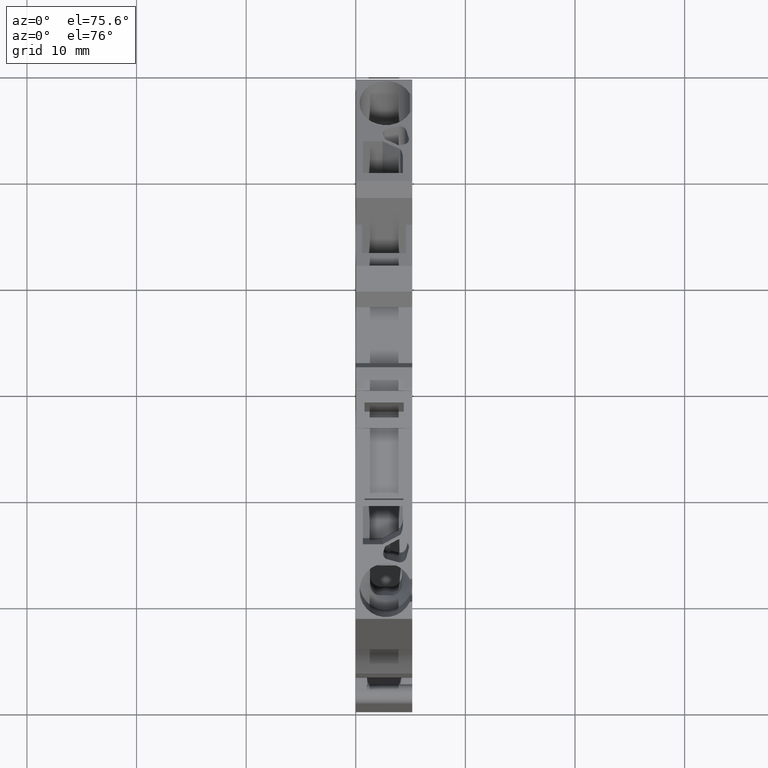
[diagram: clean part render]
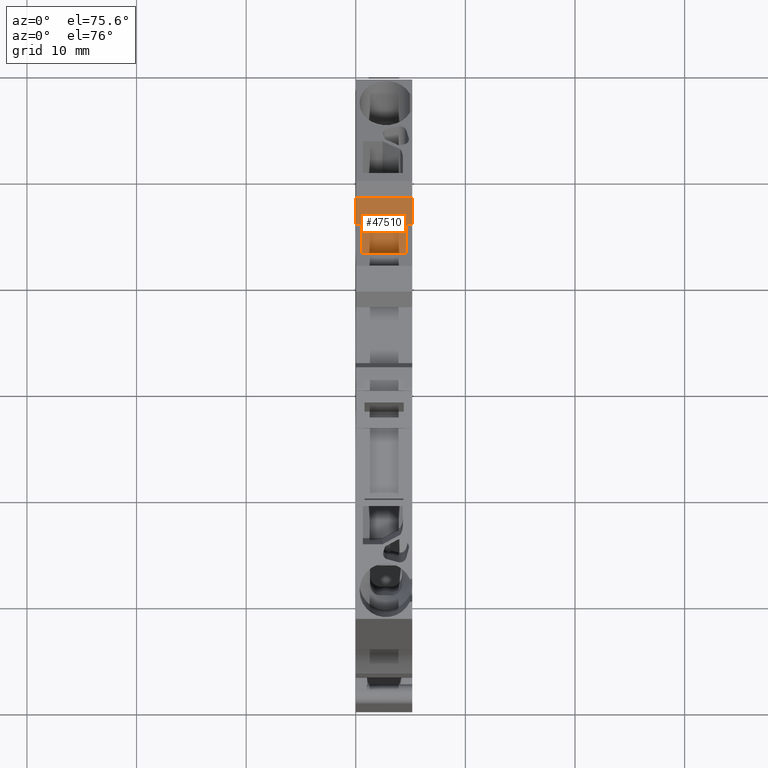
[diagram: same view with one face highlighted and labeled with its STEP entity id]
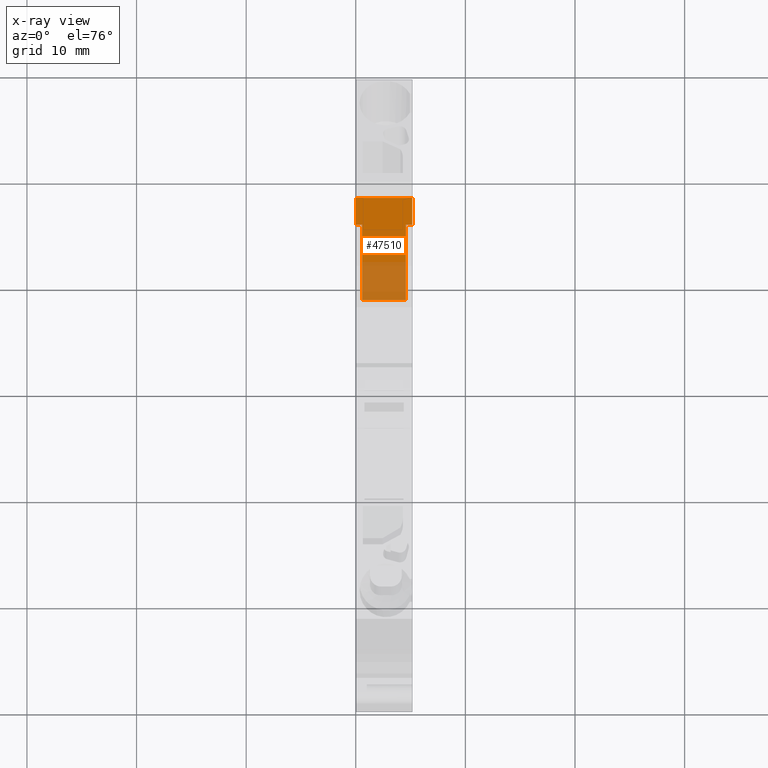
[diagram: x-ray of the same camera — body ghosted, the highlighted face saturated]
A machine part, auxiliary view. The second image highlights one B-rep face of the part: STEP entity #47510.
The next image is the same camera in x-ray: the body ghosted, the highlighted face saturated — about 35% of this face is hidden behind the body in this view.
In plain terms, the highlighted planar face has unit normal (0, 0.9397, -0.342).
Its self-contained STEP definition (entity closure, byte-faithful):
#7500=CARTESIAN_POINT('',(-3.89752594864123,30.7480357208503,
-1.23699953515012E-10));
#7510=VERTEX_POINT('',#7500);
#7540=CARTESIAN_POINT('',(-3.8975259486413,30.7480357208501,
2.8421709430404E-14));
#7550=DIRECTION('',(0.,0.,1.));
#7560=VECTOR('',#7550,1.);
#7570=LINE('',#7540,#7560);
#7580=CARTESIAN_POINT('',(-3.89752594864128,30.7480357208501,
-5.15000000000269));
#7590=VERTEX_POINT('',#7580);
#7600=EDGE_CURVE('',#7590,#7510,#7570,.T.);
#27450=CARTESIAN_POINT('',(-5.36821256494114,26.7073574514722,
-4.57500000000268));
#27460=VERTEX_POINT('',#27450);
#27490=CARTESIAN_POINT('',(-5.36821256494114,26.7073574514722,
-4.57500000000268));
#27500=DIRECTION('',(-0.342020143325669,-0.939692620785908,
3.34773204791426E-18));
#27510=VECTOR('',#27500,1.);
#27520=LINE('',#27490,#27510);
#27530=CARTESIAN_POINT('',(-9.5408583135143,15.2431074778841,
-4.57500000000268));
#27540=VERTEX_POINT('',#27530);
#27550=EDGE_CURVE('',#27460,#27540,#27520,.T.);
#32230=CARTESIAN_POINT('',(-5.36821256494114,26.7073574514722,
-0.574999999999995));
#32240=VERTEX_POINT('',#32230);
#32320=CARTESIAN_POINT('',(-9.5408583135143,15.2431074778841,
-0.574999999999995));
#32330=VERTEX_POINT('',#32320);
#32360=CARTESIAN_POINT('',(-5.36821256494114,26.7073574514722,
-0.574999999999995));
#32370=DIRECTION('',(-0.342020143325669,-0.939692620785908,
3.34773204791426E-18));
#32380=VECTOR('',#32370,1.);
#32390=LINE('',#32360,#32380);
#32400=EDGE_CURVE('',#32240,#32330,#32390,.T.);
#47110=CARTESIAN_POINT('',(-5.36821256494114,26.7073574514722,
-0.574999999999995));
#47120=DIRECTION('',(0.939692620785908,-0.342020143325669,
2.22044604924882E-16));
#47130=DIRECTION('',(-2.08653676733234E-16,7.59437276010997E-17,1.));
#47140=AXIS2_PLACEMENT_3D('',#47110,#47120,#47130);
#47150=PLANE('',#47140);
#47160=CARTESIAN_POINT('',(-5.36821256494113,26.7073574514722,0.));
#47170=DIRECTION('',(0.,0.,-1.));
#47180=VECTOR('',#47170,1.);
#47190=LINE('',#47160,#47180);
#47200=CARTESIAN_POINT('',(-5.36821256494111,26.7073574514723,
-5.15000000000269));
#47210=VERTEX_POINT('',#47200);
#47220=EDGE_CURVE('',#27460,#47210,#47190,.T.);
#47230=ORIENTED_EDGE('',*,*,#47220,.F.);
#47240=CARTESIAN_POINT('',(-15.0888957131847,0.,-5.15000000000272));
#47250=DIRECTION('',(0.34202014332567,0.939692620785908,0.));
#47260=VECTOR('',#47250,1.);
#47270=LINE('',#47240,#47260);
#47280=EDGE_CURVE('',#47210,#7590,#47270,.T.);
#47290=ORIENTED_EDGE('',*,*,#47280,.F.);
#47300=ORIENTED_EDGE('',*,*,#7600,.F.);
#47310=CARTESIAN_POINT('',(-15.0888957131847,0.,0.));
#47320=DIRECTION('',(0.34202014332567,0.939692620785908,0.));
#47330=VECTOR('',#47320,1.);
#47340=LINE('',#47310,#47330);
#47350=CARTESIAN_POINT('',(-5.3682125649411,26.7073574514723,
-1.25921634687376E-10));
#47360=VERTEX_POINT('',#47350);
#47370=EDGE_CURVE('',#47360,#7510,#47340,.T.);
#47380=ORIENTED_EDGE('',*,*,#47370,.T.);
#47390=EDGE_CURVE('',#47360,#32240,#47190,.T.);
#47400=ORIENTED_EDGE('',*,*,#47390,.F.);
#47410=ORIENTED_EDGE('',*,*,#32400,.F.);
#47420=CARTESIAN_POINT('',(-9.5408583135143,15.2431074778841,
-4.57500000000268));
#47430=DIRECTION('',(-1.04212339187133E-15,3.82864477107292E-16,1.));
#47440=VECTOR('',#47430,1.);
#47450=LINE('',#47420,#47440);
#47460=EDGE_CURVE('',#27540,#32330,#47450,.T.);
#47470=ORIENTED_EDGE('',*,*,#47460,.T.);
#47480=ORIENTED_EDGE('',*,*,#27550,.T.);
#47490=EDGE_LOOP('',(#47480,#47470,#47410,#47400,#47380,#47300,#47290,
#47230));
#47500=FACE_OUTER_BOUND('',#47490,.T.);
#47510=ADVANCED_FACE('',(#47500),#47150,.F.);